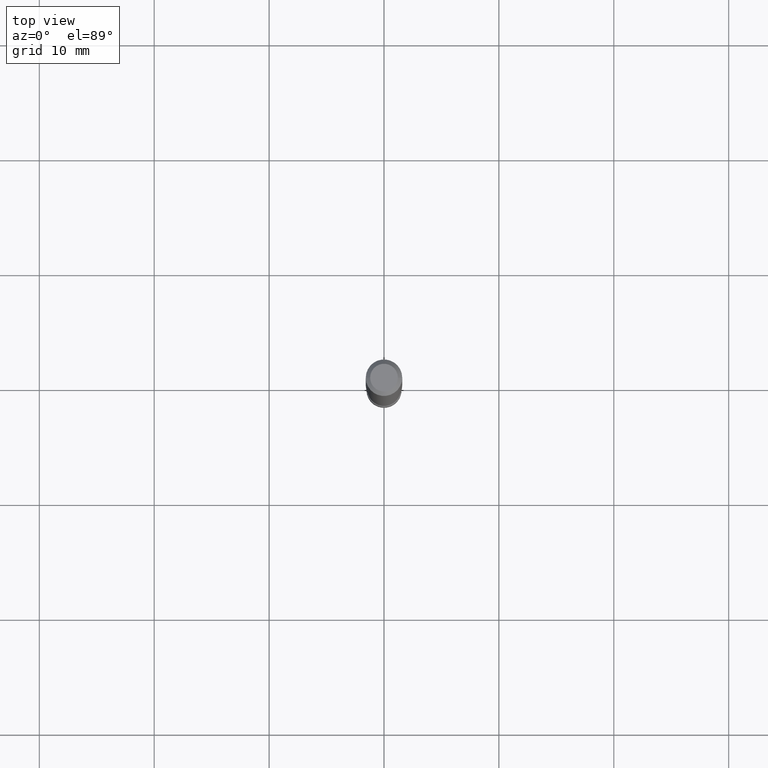
[diagram: clean part render]
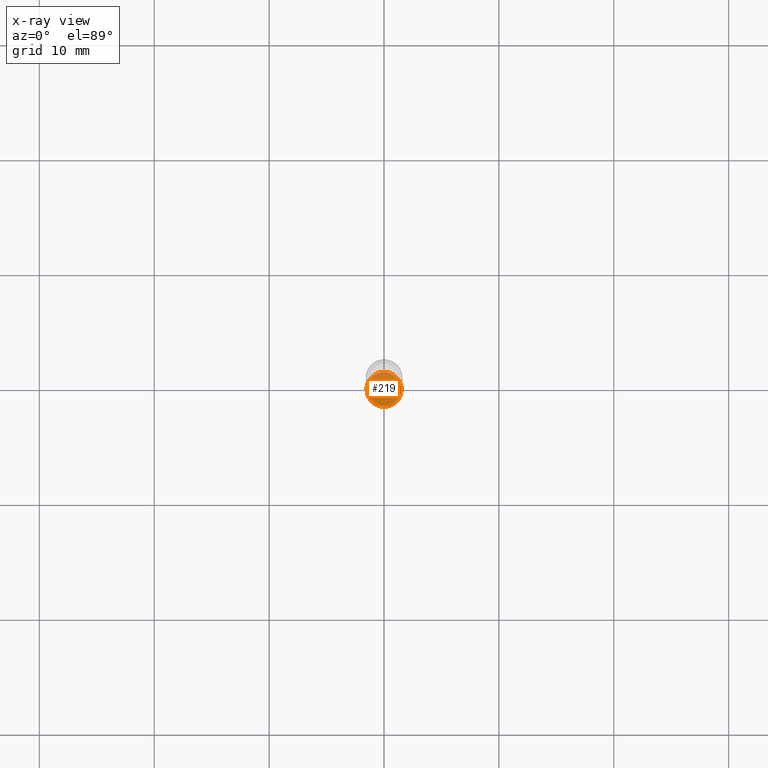
[diagram: x-ray — body ghosted, one internal face saturated and labeled with its STEP entity id]
A machine part, top view, then the same camera in x-ray: the body is ghosted and one INTERNAL B-rep face — a face not visible from any outside direction — is saturated and labeled: STEP entity #219.
In plain terms, the highlighted planar face has unit normal (-0, 0, 1).
Its self-contained STEP definition (entity closure, byte-faithful):
#8 = VERTEX_POINT ( 'NONE', #208 ) ;
#14 = EDGE_CURVE ( 'NONE', #8, #363, #218, .T. ) ;
#15 = DIRECTION ( 'NONE',  ( -2.445468806185136597E-29, 3.491481338843145583E-15, 1.000000000000000000 ) ) ;
#95 = AXIS2_PLACEMENT_3D ( 'NONE', #457, #15, #418 ) ;
#139 = DIRECTION ( 'NONE',  ( 1.000000000000000000, -6.982962677686265922E-15, 4.876176775795935793E-29 ) ) ;
#183 = PLANE ( 'NONE',  #459 ) ;
#208 = CARTESIAN_POINT ( 'NONE',  ( -0.05999999999999999778, -7.673911064660039502E-15, -2.320000000000000284 ) ) ;
#218 = CIRCLE ( 'NONE', #292, 0.05999999999999999778 ) ;
#219 = ADVANCED_FACE ( 'NONE', ( #385 ), #183, .F. ) ;
#228 = EDGE_CURVE ( 'NONE', #363, #8, #280, .T. ) ;
#258 = ORIENTED_EDGE ( 'NONE', *, *, #14, .F. ) ;
#280 = CIRCLE ( 'NONE', #95, 0.05999999999999999778 ) ;
#292 = AXIS2_PLACEMENT_3D ( 'NONE', #421, #324, #447 ) ;
#298 = DIRECTION ( 'NONE',  ( -2.438088387897960049E-29, 3.491481338843145188E-15, 1.000000000000000000 ) ) ;
#314 = ORIENTED_EDGE ( 'NONE', *, *, #228, .F. ) ;
#324 = DIRECTION ( 'NONE',  ( -2.445468806185136597E-29, 3.491481338843145583E-15, 1.000000000000000000 ) ) ;
#362 = EDGE_LOOP ( 'NONE', ( #314, #258 ) ) ;
#363 = VERTEX_POINT ( 'NONE', #436 ) ;
#385 = FACE_OUTER_BOUND ( 'NONE', #362, .T. ) ;
#418 = DIRECTION ( 'NONE',  ( 1.000000000000000000, -6.982962677686268288E-15, 0.000000000000000000 ) ) ;
#421 = CARTESIAN_POINT ( 'NONE',  ( 5.673487630349517039E-29, -8.100236706116099992E-15, -2.320000000000000284 ) ) ;
#430 = CARTESIAN_POINT ( 'NONE',  ( 4.189777606612326922E-16, 0.05999999999999190009, -2.320000000000000728 ) ) ;
#436 = CARTESIAN_POINT ( 'NONE',  ( 0.05999999999999999778, -8.519214466777275048E-15, -2.320000000000000284 ) ) ;
#447 = DIRECTION ( 'NONE',  ( 1.000000000000000000, -6.982962677686268288E-15, 0.000000000000000000 ) ) ;
#457 = CARTESIAN_POINT ( 'NONE',  ( 5.673487630349517039E-29, -8.100236706116099992E-15, -2.320000000000000284 ) ) ;
#459 = AXIS2_PLACEMENT_3D ( 'NONE', #430, #298, #139 ) ;